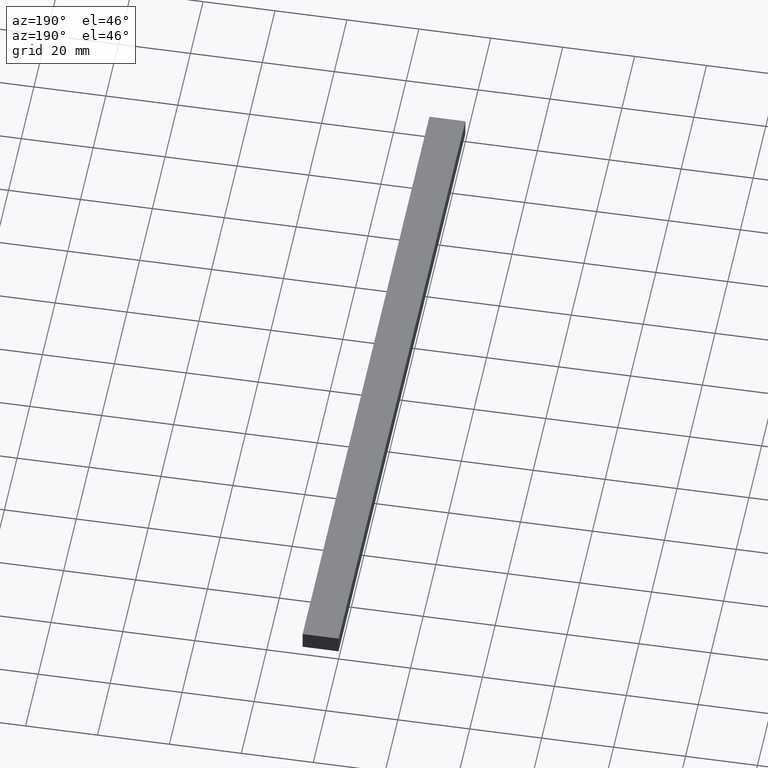
[diagram: clean part render]
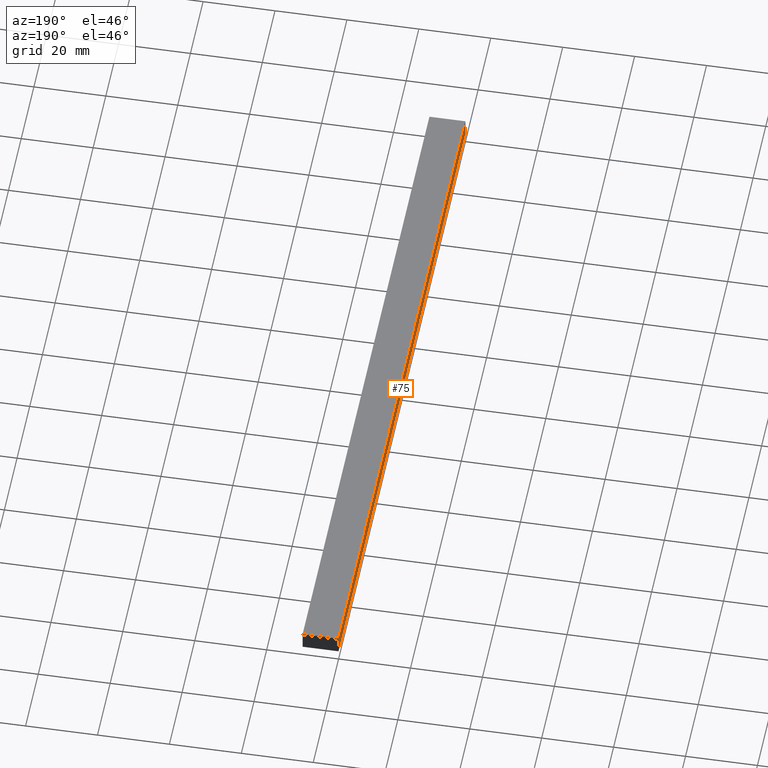
[diagram: same view with one face highlighted and labeled with its STEP entity id]
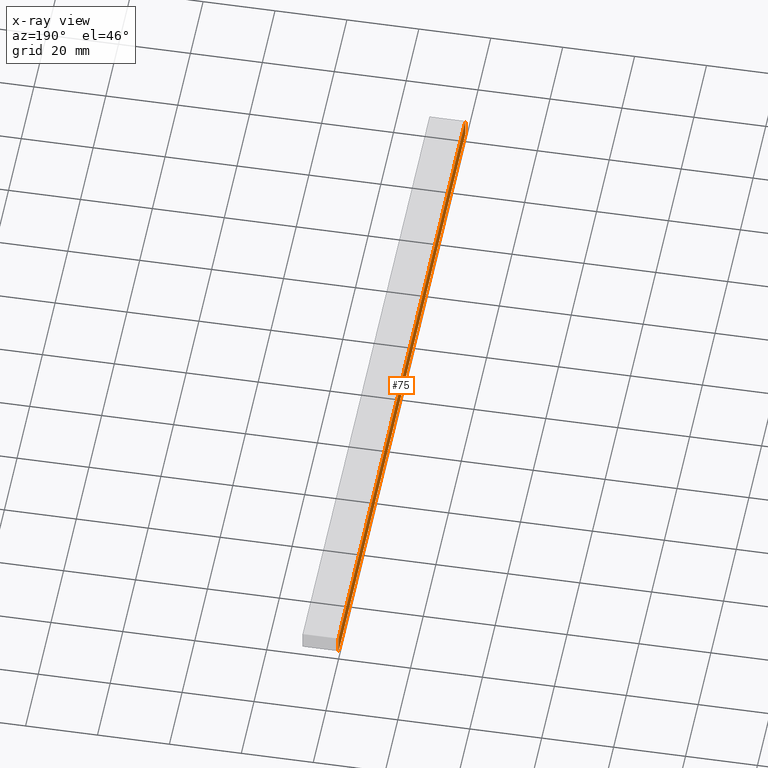
[diagram: x-ray of the same camera — body ghosted, the highlighted face saturated]
A machine part, auxiliary view. The second image highlights one B-rep face of the part: STEP entity #75.
The next image is the same camera in x-ray: the body ghosted, the highlighted face saturated — about 0% of this face is hidden behind the body in this view.
In plain terms, the highlighted planar face has unit normal (1, 0, 0).
Its self-contained STEP definition (entity closure, byte-faithful):
#3 = VERTEX_POINT ( 'NONE', #87 ) ;
#10 = VECTOR ( 'NONE', #28, 1000.000000000000000 ) ;
#17 = CARTESIAN_POINT ( 'NONE',  ( 0.0000000000000000000, 1000.000000000000000, 0.0000000000000000000 ) ) ;
#23 = VERTEX_POINT ( 'NONE', #84 ) ;
#24 = VECTOR ( 'NONE', #157, 1000.000000000000000 ) ;
#28 = DIRECTION ( 'NONE',  ( 0.0000000000000000000, -1.000000000000000000, 0.0000000000000000000 ) ) ;
#42 = LINE ( 'NONE', #197, #24 ) ;
#46 = CARTESIAN_POINT ( 'NONE',  ( 0.0000000000000000000, 1000.000000000000000, 5.000000000000000000 ) ) ;
#49 = PLANE ( 'NONE',  #110 ) ;
#55 = EDGE_CURVE ( 'NONE', #3, #23, #103, .T. ) ;
#56 = EDGE_LOOP ( 'NONE', ( #121, #186, #202, #168 ) ) ;
#57 = FACE_OUTER_BOUND ( 'NONE', #56, .T. ) ;
#69 = CARTESIAN_POINT ( 'NONE',  ( 0.0000000000000000000, 1000.000000000000000, 0.0000000000000000000 ) ) ;
#70 = LINE ( 'NONE', #46, #111 ) ;
#75 = ADVANCED_FACE ( 'NONE', ( #57 ), #49, .F. ) ;
#84 = CARTESIAN_POINT ( 'NONE',  ( 0.0000000000000000000, 0.0000000000000000000, 0.0000000000000000000 ) ) ;
#85 = DIRECTION ( 'NONE',  ( 1.000000000000000000, 0.0000000000000000000, 0.0000000000000000000 ) ) ;
#87 = CARTESIAN_POINT ( 'NONE',  ( 0.0000000000000000000, 200.0000000000000000, 0.0000000000000000000 ) ) ;
#96 = VERTEX_POINT ( 'NONE', #105 ) ;
#100 = EDGE_CURVE ( 'NONE', #3, #96, #188, .T. ) ;
#103 = LINE ( 'NONE', #69, #10 ) ;
#105 = CARTESIAN_POINT ( 'NONE',  ( 0.0000000000000000000, 200.0000000000000000, 5.000000000000000000 ) ) ;
#110 = AXIS2_PLACEMENT_3D ( 'NONE', #17, #85, #194 ) ;
#111 = VECTOR ( 'NONE', #210, 1000.000000000000000 ) ;
#121 = ORIENTED_EDGE ( 'NONE', *, *, #184, .T. ) ;
#139 = VECTOR ( 'NONE', #174, 1000.000000000000000 ) ;
#141 = CARTESIAN_POINT ( 'NONE',  ( 0.0000000000000000000, 200.0000000000000000, 0.0000000000000000000 ) ) ;
#157 = DIRECTION ( 'NONE',  ( 0.0000000000000000000, 0.0000000000000000000, 1.000000000000000000 ) ) ;
#161 = CARTESIAN_POINT ( 'NONE',  ( 0.0000000000000000000, 0.0000000000000000000, 5.000000000000000000 ) ) ;
#168 = ORIENTED_EDGE ( 'NONE', *, *, #55, .T. ) ;
#170 = VERTEX_POINT ( 'NONE', #161 ) ;
#174 = DIRECTION ( 'NONE',  ( 0.0000000000000000000, 0.0000000000000000000, 1.000000000000000000 ) ) ;
#184 = EDGE_CURVE ( 'NONE', #23, #170, #42, .T. ) ;
#186 = ORIENTED_EDGE ( 'NONE', *, *, #200, .F. ) ;
#188 = LINE ( 'NONE', #141, #139 ) ;
#194 = DIRECTION ( 'NONE',  ( 0.0000000000000000000, 0.0000000000000000000, -1.000000000000000000 ) ) ;
#197 = CARTESIAN_POINT ( 'NONE',  ( 0.0000000000000000000, 0.0000000000000000000, 0.0000000000000000000 ) ) ;
#200 = EDGE_CURVE ( 'NONE', #96, #170, #70, .T. ) ;
#202 = ORIENTED_EDGE ( 'NONE', *, *, #100, .F. ) ;
#210 = DIRECTION ( 'NONE',  ( 0.0000000000000000000, -1.000000000000000000, 0.0000000000000000000 ) ) ;